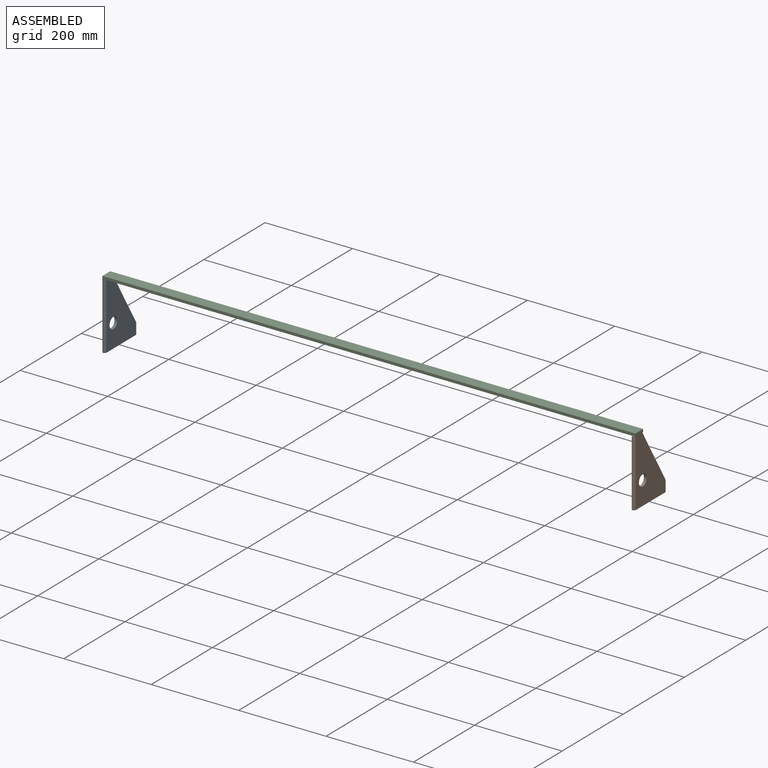
[diagram: assembled view]
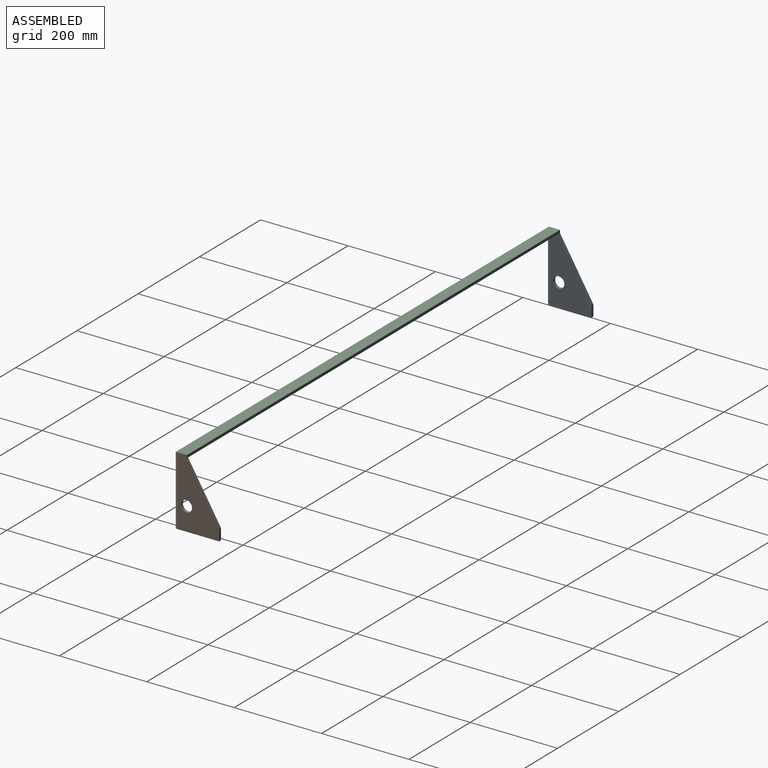
[diagram: assembled view, second angle]
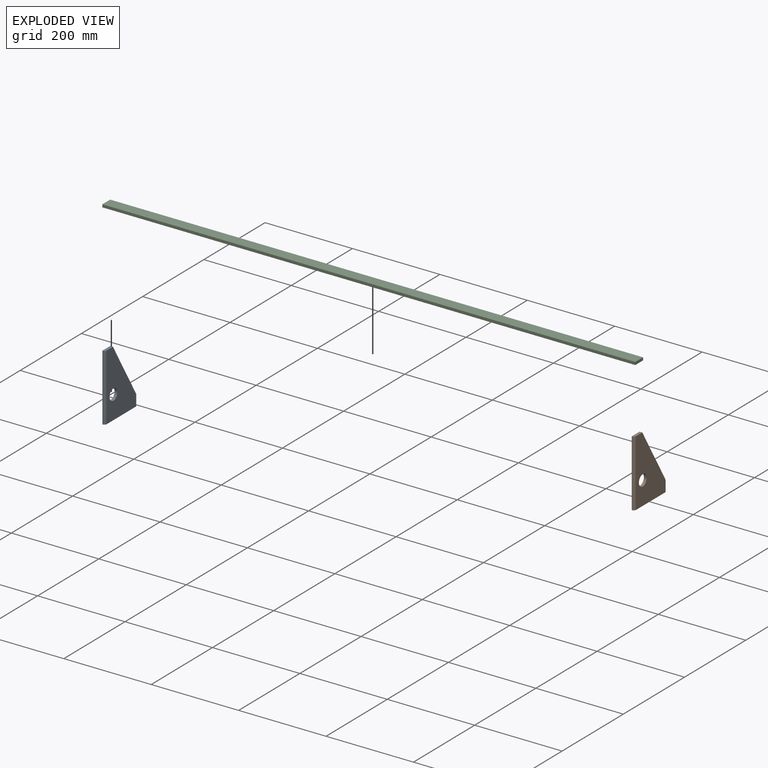
[diagram: exploded view]
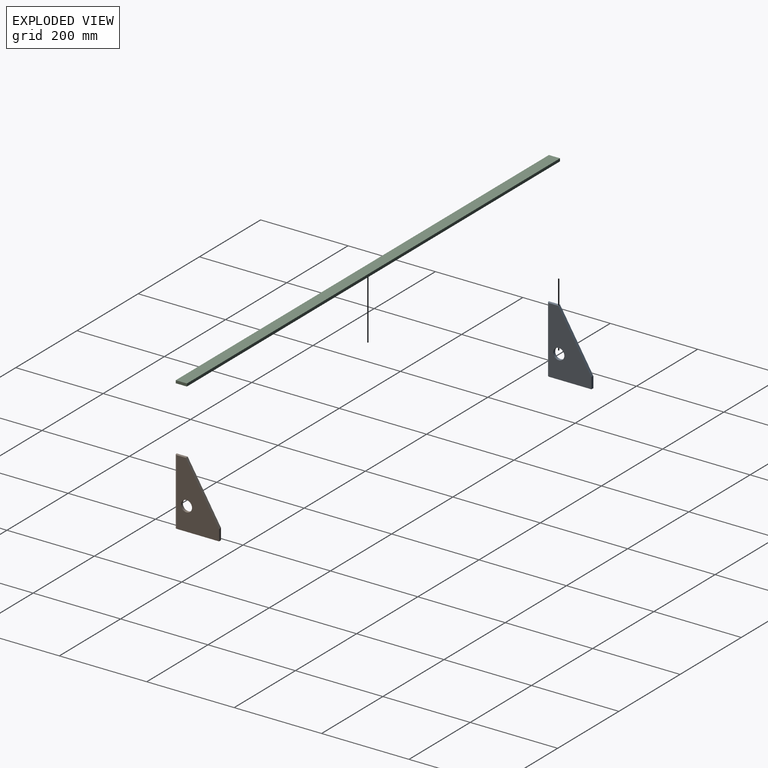
[diagram: exploded view, second angle]
ASSEMBLY  parts=3 mates=2
PART A: 9 faces, bbox 101.6x6.4x152.4 mm
  f0: plane 101.6x6.35mm, normal (0,0,-1), area 639.6mm2, adj f1,f4,f5,f6,f7
  f1: plane 152.4x1.27mm, normal (1,0,0), area 193.5mm2, adj f0,f2,f5,f7
  f2: plane 25.4x6.35mm, normal (0,0,1), area 155.8mm2, adj f1,f3,f5,f6,f7
  f3: plane 127x76.2mm, normal (-0.86,0,0.51), area 940.5mm2, adj f2,f4,f5,f6
  f4: plane 25.4x6.35mm, normal (-1,0,0), area 161.3mm2, adj f0,f3,f5,f6
  f5: plane 152.4x101.6mm, normal (0,-1,0), area 10138.4mm2, adj f0,f1,f2,f3,f4,f8
  f6: plane 152.4x96.52mm, normal (0,1,0), area 9364.2mm2, adj f0,f2,f3,f4,f7,f8
  f7: cylinder r=5.08mm len=152.4mm, axis (0,0,1), area 1216.1mm2, adj f0,f1,f2,f6
  f8: cylinder r=12.7mm len=25.4mm, axis (0,1,0), area 506.7mm2, adj f5,f6
PART B: same geometry as A
PART C: 6 faces, bbox 1219.2x6.4x25.4 mm
  f0: plane 25.4x6.35mm, normal (1,0,0), area 161.3mm2, adj f1,f3,f4,f5
  f1: plane 1219.2x6.35mm, normal (0,0,1), area 7741.9mm2, adj f0,f2,f4,f5
  f2: plane 25.4x6.35mm, normal (-1,0,0), area 161.3mm2, adj f1,f3,f4,f5
  f3: plane 1219.2x6.35mm, normal (0,0,-1), area 7741.9mm2, adj f0,f2,f4,f5
  f4: plane 1219.2x25.4mm, normal (0,-1,0), area 30967.7mm2, adj f0,f1,f2,f3
  f5: plane 1219.2x25.4mm, normal (0,1,0), area 30967.7mm2, adj f0,f1,f2,f3
PLACE A rot(axis=(0,0,-1),90deg) t=(-907.57,-89.1,60.35)mm
PLACE B rot(axis=(0,0,-1),90deg) t=(305.28,-91.64,60.35)mm
PLACE C rot(axis=(-1,0,0),90deg) t=(-304.32,-127.2,136.55)mm
MATE fastened B.f2 <-> C.f5  axis (0,0,1) through (305.28,-127.2,136.55)mm
MATE fastened C.f5 <-> A.f2  axis (0,0,-1) through (-913.92,-127.2,136.55)mm
